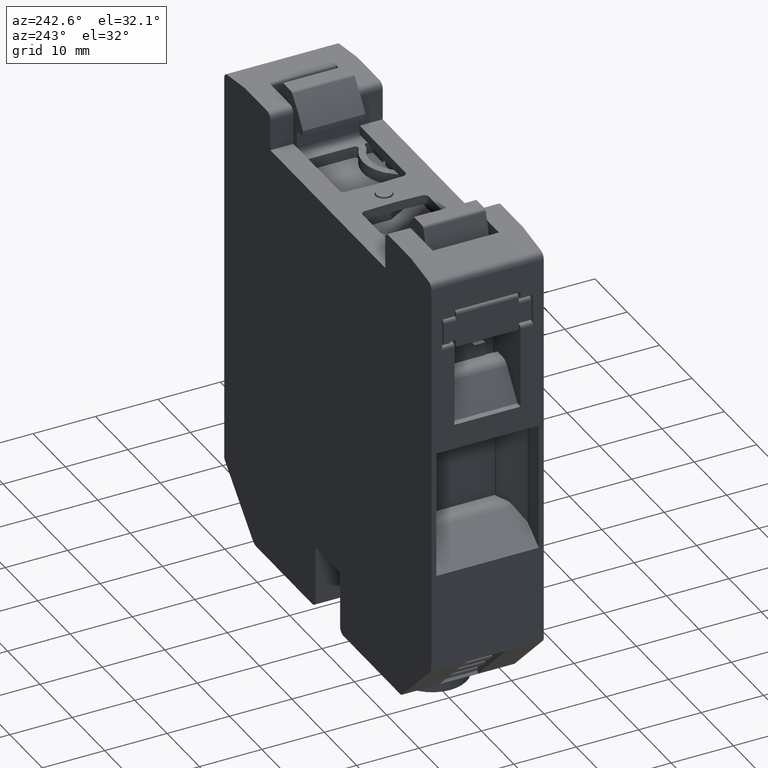
[diagram: clean part render]
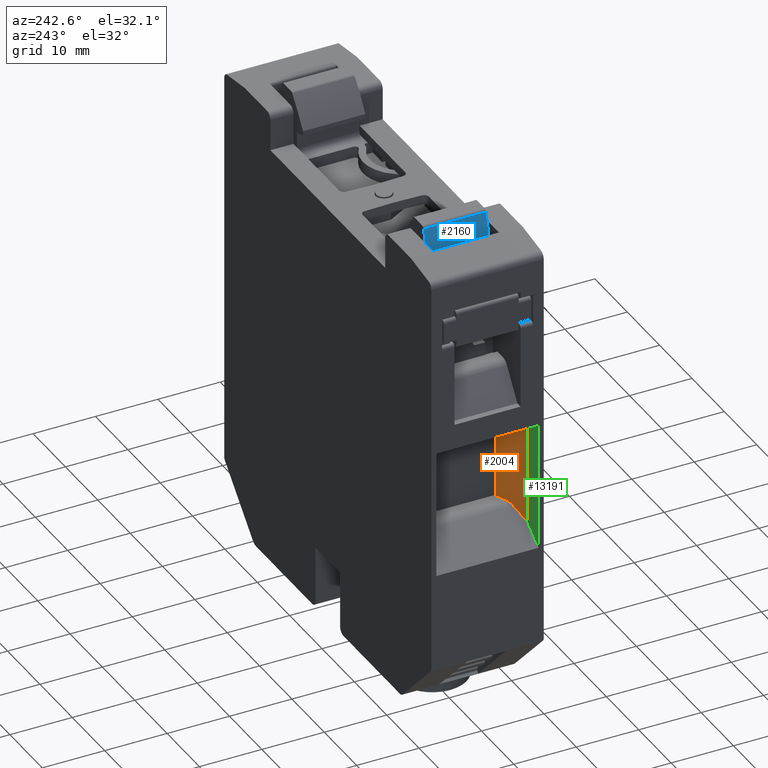
[diagram: same view with three faces highlighted in distinct colors, each labeled with its STEP entity id]
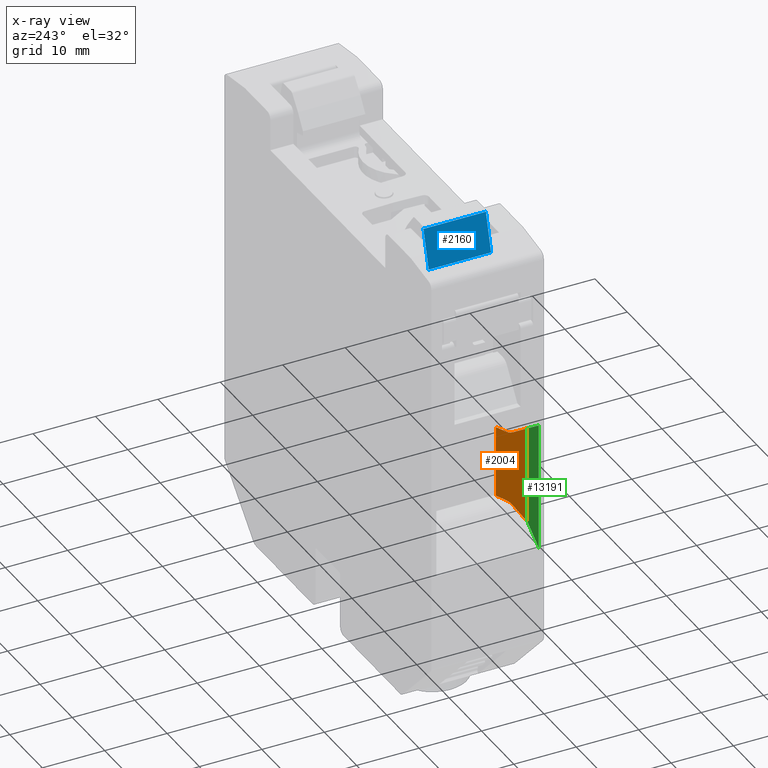
[diagram: x-ray of the same camera — body ghosted, the three highlighted faces saturated]
A machine part, auxiliary view with three faces highlighted in distinct colors.
The next image is the same camera in x-ray (body ghosted, the three faces saturated) — at least one of them is partly hidden behind the body in this view.
Their STEP definitions:

[orange] entity #2004 — the highlighted planar face has unit normal (0.395, -0.9187, 0).
#1174 = AXIS2_PLACEMENT_3D ( 'NONE', #15277, #15259, #15260 ) ;
#1440 = VECTOR ( 'NONE', #18089, 1000.000000000000000 ) ;
#1461 = VECTOR ( 'NONE', #18123, 1000.000000000000000 ) ;
#1485 = VECTOR ( 'NONE', #18130, 1000.000000000000100 ) ;
#2004 = ADVANCED_FACE ( 'NONE', ( #15255 ), #15273, .F. ) ;
#2310 = EDGE_CURVE ( 'NONE', #22037, #21856, #3006, .T. ) ;
#2335 = EDGE_CURVE ( 'NONE', #21884, #22027, #2983, .T. ) ;
#2351 = EDGE_CURVE ( 'NONE', #22022, #22109, #18112, .T. ) ;
#2356 = EDGE_CURVE ( 'NONE', #22022, #22027, #18086, .T. ) ;
#2369 = EDGE_CURVE ( 'NONE', #22037, #22109, #18137, .T. ) ;
#2983 = B_SPLINE_CURVE_WITH_KNOTS ( 'NONE', 3,
 ( #17983, #17973, #17980, #17994, #18010, #17986, #17981, #18013, #17982, #18015, #18019, #17985, #18020, #17987, #17988 ),
 .UNSPECIFIED., .F., .F.,
 ( 4, 2, 2, 1, 1, 1, 2, 2, 4 ),
 ( 0.0000000000000000000, 0.2500000000002010100, 0.3750000000003045900, 0.4375000000003337300, 0.4687500000003668700, 0.4843750000003638800, 0.4921875000003654300, 0.5000000000003669300, 1.000000000000000000 ),
 .UNSPECIFIED. ) ;
#3006 = B_SPLINE_CURVE_WITH_KNOTS ( 'NONE', 3,
 ( #17882, #17898, #17915, #17917, #17910, #17875, #17902, #17903, #17904, #17918, #17919, #17906, #17909, #17911, #17920 ),
 .UNSPECIFIED., .F., .F.,
 ( 4, 2, 2, 1, 1, 1, 2, 2, 4 ),
 ( 0.0000000000000000000, 0.2500000000006173400, 0.3750000000009230900, 0.4375000000010917900, 0.4687500000011633500, 0.4843750000011880500, 0.4921875000011867200, 0.5000000000011853900, 1.000000000000000000 ),
 .UNSPECIFIED. ) ;
#6453 = CARTESIAN_POINT ( 'NONE',  ( 75.08087807398874200, 43.44501882311691800, 29.47008658224126900 ) ) ;
#6454 = CARTESIAN_POINT ( 'NONE',  ( 76.77855709841900000, 44.17496569330342700, 40.97008658224285000 ) ) ;
#6507 = CARTESIAN_POINT ( 'NONE',  ( 75.08087807397771500, 43.44501882311571000, 40.97008658224127200 ) ) ;
#6510 = CARTESIAN_POINT ( 'NONE',  ( 76.77855709842015100, 44.17496569330203500, 29.47008658224188300 ) ) ;
#6635 = CARTESIAN_POINT ( 'NONE',  ( 73.93372520127616100, 42.95178032690867600, 41.33178249366216800 ) ) ;
#6647 = CARTESIAN_POINT ( 'NONE',  ( 73.93372520125491600, 42.95178032689619100, 29.10839067079581400 ) ) ;
#6690 = CARTESIAN_POINT ( 'NONE',  ( 71.42931605679265800, 41.87496569330026100, 43.08538865538747600 ) ) ;
#6711 = CARTESIAN_POINT ( 'NONE',  ( 71.42931605679812900, 41.87496569330114900, 27.35478450908418000 ) ) ;
#10163 = VECTOR ( 'NONE', #10677, 999.9999999999998900 ) ;
#10166 = VECTOR ( 'NONE', #10854, 1000.000000000000000 ) ;
#10210 = VECTOR ( 'NONE', #10997, 999.9999999999998900 ) ;
#10677 = DIRECTION ( 'NONE',  ( 0.9186800097547321900, 0.3950025818612396500, 0.0000000000000000000 ) ) ;
#10679 = LINE ( 'NONE', #10694, #10163 ) ;
#10694 = CARTESIAN_POINT ( 'NONE',  ( 71.42931605680958300, 41.87496569330377100, 29.47008658224126900 ) ) ;
#10821 = LINE ( 'NONE', #10844, #10166 ) ;
#10844 = CARTESIAN_POINT ( 'NONE',  ( 76.77855709842074800, 44.17496569330067800, 23.64733983166548700 ) ) ;
#10854 = DIRECTION ( 'NONE',  ( -1.001214862905556300E-013, 2.328582450490853100E-013, 1.000000000000000000 ) ) ;
#10993 = CARTESIAN_POINT ( 'NONE',  ( 71.42931605680843200, 41.87496569330645000, 40.97008658224285700 ) ) ;
#10997 = DIRECTION ( 'NONE',  ( -0.9186800097547321900, -0.3950025818612396500, -0.0000000000000000000 ) ) ;
#11007 = LINE ( 'NONE', #10993, #10210 ) ;
#13775 = EDGE_CURVE ( 'NONE', #21856, #21898, #10679, .T. ) ;
#13819 = EDGE_CURVE ( 'NONE', #21898, #21854, #10821, .T. ) ;
#13857 = EDGE_CURVE ( 'NONE', #21854, #21884, #11007, .T. ) ;
#15255 = FACE_OUTER_BOUND ( 'NONE', #21277, .T. ) ;
#15259 = DIRECTION ( 'NONE',  ( 0.3950025818612396500, -0.9186800097547321900, 2.534704604177177000E-013 ) ) ;
#15260 = DIRECTION ( 'NONE',  ( 0.9186800097547321900, 0.3950025818612396500, 0.0000000000000000000 ) ) ;
#15273 = PLANE ( 'NONE',  #1174 ) ;
#15277 = CARTESIAN_POINT ( 'NONE',  ( 71.42931605681016500, 41.87496569330241400, 23.64733983166548700 ) ) ;
#17875 = CARTESIAN_POINT ( 'NONE',  ( 74.34952878157213300, 43.13059367798389600, 29.33176450419825800 ) ) ;
#17882 = CARTESIAN_POINT ( 'NONE',  ( 73.93372520125491600, 42.95178032689619100, 29.10839067079581400 ) ) ;
#17898 = CARTESIAN_POINT ( 'NONE',  ( 74.00851097256767700, 42.98393678314007400, 29.16075623161986700 ) ) ;
#17902 = CARTESIAN_POINT ( 'NONE',  ( 74.38746066927990300, 43.14688875396707600, 29.34638427926750400 ) ) ;
#17903 = CARTESIAN_POINT ( 'NONE',  ( 74.43302983677294500, 43.16646996122203500, 29.36234190506262100 ) ) ;
#17904 = CARTESIAN_POINT ( 'NONE',  ( 74.45614019462465200, 43.17640313616816200, 29.37003076474724100 ) ) ;
#17906 = CARTESIAN_POINT ( 'NONE',  ( 74.47743757319472000, 43.18555900302231300, 29.37688077346142600 ) ) ;
#17909 = CARTESIAN_POINT ( 'NONE',  ( 74.60931618925162900, 43.24226211947619400, 29.41846194138333500 ) ) ;
#17910 = CARTESIAN_POINT ( 'NONE',  ( 74.27518777437539700, 43.09865528061705900, 29.30140551448604200 ) ) ;
#17911 = CARTESIAN_POINT ( 'NONE',  ( 74.80978578916153800, 43.32845794096181200, 29.47008658224103100 ) ) ;
#17915 = CARTESIAN_POINT ( 'NONE',  ( 74.09122988612519100, 43.01956926390099800, 29.21105238262981300 ) ) ;
#17917 = CARTESIAN_POINT ( 'NONE',  ( 74.22766008916363500, 43.07823202183851000, 29.27967505309169400 ) ) ;
#17918 = CARTESIAN_POINT ( 'NONE',  ( 74.46611409100744100, 43.18069076214192100, 29.37326221640750400 ) ) ;
#17919 = CARTESIAN_POINT ( 'NONE',  ( 74.47277874859726400, 43.18355596856819300, 29.37540216232598700 ) ) ;
#17920 = CARTESIAN_POINT ( 'NONE',  ( 75.08087807398874200, 43.44501882311691800, 29.47008658224126900 ) ) ;
#17973 = CARTESIAN_POINT ( 'NONE',  ( 74.94535209243798600, 43.38674705051958100, 40.97008658224126500 ) ) ;
#17980 = CARTESIAN_POINT ( 'NONE',  ( 74.82695200863011600, 43.33606220885010900, 40.98366089593800900 ) ) ;
#17981 = CARTESIAN_POINT ( 'NONE',  ( 74.54005691674731800, 43.21252454257735600, 41.04443303566348800 ) ) ;
#17982 = CARTESIAN_POINT ( 'NONE',  ( 74.49390739437988900, 43.19264347192470400, 41.05815066224061400 ) ) ;
#17983 = CARTESIAN_POINT ( 'NONE',  ( 75.08087807397771500, 43.44501882311571000, 40.97008658224127200 ) ) ;
#17985 = CARTESIAN_POINT ( 'NONE',  ( 74.48281383479414300, 43.18787062506044800, 41.06159726224570500 ) ) ;
#17986 = CARTESIAN_POINT ( 'NONE',  ( 74.56928242151437300, 43.22512988523406800, 41.03650933914234900 ) ) ;
#17987 = CARTESIAN_POINT ( 'NONE',  ( 74.08331548654088300, 43.01610129837403200, 41.22703824827701200 ) ) ;
#17988 = CARTESIAN_POINT ( 'NONE',  ( 73.93372520127616100, 42.95178032690867600, 41.33178249366216800 ) ) ;
#17994 = CARTESIAN_POINT ( 'NONE',  ( 74.67664872116894500, 43.27141534273589200, 41.01070147619508100 ) ) ;
#18010 = CARTESIAN_POINT ( 'NONE',  ( 74.63104745574909800, 43.25176312009615700, 41.02086707651646700 ) ) ;
#18013 = CARTESIAN_POINT ( 'NONE',  ( 74.50881828968204000, 43.19906304033306600, 41.05360822256867700 ) ) ;
#18015 = CARTESIAN_POINT ( 'NONE',  ( 74.48766816856586100, 43.18995891033122100, 41.06008483415639200 ) ) ;
#18019 = CARTESIAN_POINT ( 'NONE',  ( 74.48354220209648700, 43.18818402082666800, 41.06137116978975900 ) ) ;
#18020 = CARTESIAN_POINT ( 'NONE',  ( 74.26523544621788600, 43.09431830895741900, 41.13019946464979200 ) ) ;
#18086 = LINE ( 'NONE', #18088, #1440 ) ;
#18088 = CARTESIAN_POINT ( 'NONE',  ( 71.42931605679295600, 41.87496569330038200, 43.08538865538724100 ) ) ;
#18089 = DIRECTION ( 'NONE',  ( 0.7726298903294431800, 0.3322057716098896800, -0.5410012734537604800 ) ) ;
#18112 = LINE ( 'NONE', #18128, #1461 ) ;
#18123 = DIRECTION ( 'NONE',  ( -0.0000000000000000000, 1.046203090193248700E-013, -1.000000000000000000 ) ) ;
#18128 = CARTESIAN_POINT ( 'NONE',  ( 71.42931605679298500, 41.87496569330041000, 42.97008658224032000 ) ) ;
#18130 = DIRECTION ( 'NONE',  ( -0.7726298903284742900, -0.3322057716097836500, -0.5410012734552091000 ) ) ;
#18137 = LINE ( 'NONE', #18180, #1485 ) ;
#18180 = CARTESIAN_POINT ( 'NONE',  ( 73.93372520128683300, 42.95178032690993300, 29.10839067081818900 ) ) ;
#21277 = EDGE_LOOP ( 'NONE', ( #23330, #23221, #23273, #23333, #23235, #23283, #23303, #23322 ) ) ;
#21854 = VERTEX_POINT ( 'NONE', #6454 ) ;
#21856 = VERTEX_POINT ( 'NONE', #6453 ) ;
#21884 = VERTEX_POINT ( 'NONE', #6507 ) ;
#21898 = VERTEX_POINT ( 'NONE', #6510 ) ;
#22022 = VERTEX_POINT ( 'NONE', #6690 ) ;
#22027 = VERTEX_POINT ( 'NONE', #6635 ) ;
#22037 = VERTEX_POINT ( 'NONE', #6647 ) ;
#22109 = VERTEX_POINT ( 'NONE', #6711 ) ;
#23221 = ORIENTED_EDGE ( 'NONE', *, *, #2335, .F. ) ;
#23235 = ORIENTED_EDGE ( 'NONE', *, *, #13775, .F. ) ;
#23273 = ORIENTED_EDGE ( 'NONE', *, *, #13857, .F. ) ;
#23283 = ORIENTED_EDGE ( 'NONE', *, *, #2310, .F. ) ;
#23303 = ORIENTED_EDGE ( 'NONE', *, *, #2369, .T. ) ;
#23322 = ORIENTED_EDGE ( 'NONE', *, *, #2351, .F. ) ;
#23330 = ORIENTED_EDGE ( 'NONE', *, *, #2356, .T. ) ;
#23333 = ORIENTED_EDGE ( 'NONE', *, *, #13819, .F. ) ;

[blue] entity #2160 — the highlighted planar face has unit normal (0.9659, -0, -0.2588).
#1296 = AXIS2_PLACEMENT_3D ( 'NONE', #17187, #17188, #17195 ) ;
#2160 = ADVANCED_FACE ( 'NONE', ( #17189 ), #17213, .F. ) ;
#7259 = CARTESIAN_POINT ( 'NONE',  ( 78.15686783925995900, 55.07460764096190800, 76.62627961334753500 ) ) ;
#7291 = CARTESIAN_POINT ( 'NONE',  ( 76.56336301647013400, 55.07460764096193600, 70.67923262315912300 ) ) ;
#7322 = CARTESIAN_POINT ( 'NONE',  ( 76.56336301647007800, 45.07460764096192900, 70.67923262315910900 ) ) ;
#7362 = CARTESIAN_POINT ( 'NONE',  ( 78.15686783925990300, 45.07460764096190800, 76.62627961334752100 ) ) ;
#7731 = LINE ( 'NONE', #7770, #16098 ) ;
#7732 = CARTESIAN_POINT ( 'NONE',  ( 78.15686783926001600, 57.07460764096189400, 76.62627961334753500 ) ) ;
#7762 = DIRECTION ( 'NONE',  ( -5.538735199300800900E-015, -1.000000000000000000, 1.484098119083771700E-015 ) ) ;
#7770 = CARTESIAN_POINT ( 'NONE',  ( 76.56336301647020500, 57.07460764096189400, 70.67923262315908100 ) ) ;
#7771 = DIRECTION ( 'NONE',  ( 5.538735199300800900E-015, 1.000000000000000000, -1.484098119083771700E-015 ) ) ;
#7776 = LINE ( 'NONE', #7732, #15553 ) ;
#9675 = LINE ( 'NONE', #9693, #10054 ) ;
#9682 = DIRECTION ( 'NONE',  ( -0.2588188002758266500, 4.508091019909966600E-015, -0.9659258918901501000 ) ) ;
#9693 = CARTESIAN_POINT ( 'NONE',  ( 78.15686783925993100, 45.07460764096190100, 76.62627961334749200 ) ) ;
#9820 = DIRECTION ( 'NONE',  ( 0.2588188002758260400, -5.635113774887444800E-015, 0.9659258918901501000 ) ) ;
#9826 = CARTESIAN_POINT ( 'NONE',  ( 76.56336301647014900, 55.07460764096192200, 70.67923262315912300 ) ) ;
#9852 = LINE ( 'NONE', #9826, #10073 ) ;
#10054 = VECTOR ( 'NONE', #9682, 999.9999999999998900 ) ;
#10073 = VECTOR ( 'NONE', #9820, 1000.000000000000100 ) ;
#13462 = EDGE_CURVE ( 'NONE', #22656, #22710, #7776, .T. ) ;
#13464 = EDGE_CURVE ( 'NONE', #22703, #22673, #7731, .T. ) ;
#13665 = EDGE_CURVE ( 'NONE', #22710, #22703, #9675, .T. ) ;
#13696 = EDGE_CURVE ( 'NONE', #22673, #22656, #9852, .T. ) ;
#15553 = VECTOR ( 'NONE', #7762, 1000.000000000000000 ) ;
#16098 = VECTOR ( 'NONE', #7771, 1000.000000000000000 ) ;
#16338 = ORIENTED_EDGE ( 'NONE', *, *, #13462, .F. ) ;
#16353 = ORIENTED_EDGE ( 'NONE', *, *, #13696, .F. ) ;
#16370 = ORIENTED_EDGE ( 'NONE', *, *, #13464, .F. ) ;
#16383 = ORIENTED_EDGE ( 'NONE', *, *, #13665, .F. ) ;
#17187 = CARTESIAN_POINT ( 'NONE',  ( 78.15686783926001600, 57.07460764096189400, 76.62627961334753500 ) ) ;
#17188 = DIRECTION ( 'NONE',  ( 0.9659258918901517700, -5.734120232000866100E-015, -0.2588188002758201600 ) ) ;
#17189 = FACE_OUTER_BOUND ( 'NONE', #21011, .T. ) ;
#17195 = DIRECTION ( 'NONE',  ( -0.2588188002758201600, 0.0000000000000000000, -0.9659258918901517700 ) ) ;
#17213 = PLANE ( 'NONE',  #1296 ) ;
#21011 = EDGE_LOOP ( 'NONE', ( #16370, #16383, #16338, #16353 ) ) ;
#22656 = VERTEX_POINT ( 'NONE', #7259 ) ;
#22673 = VERTEX_POINT ( 'NONE', #7291 ) ;
#22703 = VERTEX_POINT ( 'NONE', #7322 ) ;
#22710 = VERTEX_POINT ( 'NONE', #7362 ) ;

[green] entity #13191 — the highlighted planar face has unit normal (-0, 1, 0).
#1461 = VECTOR ( 'NONE', #18123, 1000.000000000000000 ) ;
#1617 = VECTOR ( 'NONE', #19122, 1000.000000000000000 ) ;
#1636 = VECTOR ( 'NONE', #19152, 1000.000000000000000 ) ;
#1640 = VECTOR ( 'NONE', #19145, 999.9999999999998900 ) ;
#2351 = EDGE_CURVE ( 'NONE', #22022, #22109, #18112, .T. ) ;
#2578 = EDGE_CURVE ( 'NONE', #22261, #22022, #19091, .T. ) ;
#2583 = EDGE_CURVE ( 'NONE', #22109, #22144, #19181, .T. ) ;
#2586 = EDGE_CURVE ( 'NONE', #22261, #22144, #19185, .T. ) ;
#5995 = DIRECTION ( 'NONE',  ( 0.0000000000000000000, -1.046203090193248700E-013, 1.000000000000000000 ) ) ;
#6005 = CARTESIAN_POINT ( 'NONE',  ( 74.20915467616620700, 41.87496569330053800, 42.97008658224032000 ) ) ;
#6015 = PLANE ( 'NONE',  #15897 ) ;
#6035 = DIRECTION ( 'NONE',  ( -4.473128614634619800E-014, 1.000000000000000000, 1.046203090193248700E-013 ) ) ;
#6059 = FACE_OUTER_BOUND ( 'NONE', #21413, .T. ) ;
#6690 = CARTESIAN_POINT ( 'NONE',  ( 71.42931605679265800, 41.87496569330026100, 43.08538865538747600 ) ) ;
#6711 = CARTESIAN_POINT ( 'NONE',  ( 71.42931605679812900, 41.87496569330114900, 27.35478450908418000 ) ) ;
#6790 = CARTESIAN_POINT ( 'NONE',  ( 67.99836346486260700, 41.87496569330158300, 24.95240564096445400 ) ) ;
#6899 = CARTESIAN_POINT ( 'NONE',  ( 67.99836346484787000, 41.87496569329999100, 45.48776752350276100 ) ) ;
#13191 = ADVANCED_FACE ( 'NONE', ( #6059 ), #6015, .T. ) ;
#15897 = AXIS2_PLACEMENT_3D ( 'NONE', #6005, #6035, #5995 ) ;
#18112 = LINE ( 'NONE', #18128, #1461 ) ;
#18123 = DIRECTION ( 'NONE',  ( -0.0000000000000000000, 1.046203090193248700E-013, -1.000000000000000000 ) ) ;
#18128 = CARTESIAN_POINT ( 'NONE',  ( 71.42931605679298500, 41.87496569330041000, 42.97008658224032000 ) ) ;
#19086 = CARTESIAN_POINT ( 'NONE',  ( 67.99836346484363500, 41.87496569329999100, 45.48776752350573800 ) ) ;
#19091 = LINE ( 'NONE', #19086, #1617 ) ;
#19122 = DIRECTION ( 'NONE',  ( 0.8191520442895096100, 9.608775420278286600E-014, -0.5735764363503066400 ) ) ;
#19145 = DIRECTION ( 'NONE',  ( -0.8191520442884811000, 0.0000000000000000000, -0.5735764363517755800 ) ) ;
#19146 = CARTESIAN_POINT ( 'NONE',  ( 67.99836346481723100, 41.87496569329998400, 73.99564332460802500 ) ) ;
#19152 = DIRECTION ( 'NONE',  ( 9.253514454551253100E-013, -0.0000000000000000000, -1.000000000000000000 ) ) ;
#19181 = LINE ( 'NONE', #19184, #1640 ) ;
#19184 = CARTESIAN_POINT ( 'NONE',  ( 71.42931605680649900, 41.87496569330203000, 27.35478450908825100 ) ) ;
#19185 = LINE ( 'NONE', #19146, #1636 ) ;
#20186 = ORIENTED_EDGE ( 'NONE', *, *, #2578, .T. ) ;
#20195 = ORIENTED_EDGE ( 'NONE', *, *, #2583, .T. ) ;
#20801 = ORIENTED_EDGE ( 'NONE', *, *, #2351, .T. ) ;
#20825 = ORIENTED_EDGE ( 'NONE', *, *, #2586, .F. ) ;
#21413 = EDGE_LOOP ( 'NONE', ( #20195, #20825, #20186, #20801 ) ) ;
#22022 = VERTEX_POINT ( 'NONE', #6690 ) ;
#22109 = VERTEX_POINT ( 'NONE', #6711 ) ;
#22144 = VERTEX_POINT ( 'NONE', #6790 ) ;
#22261 = VERTEX_POINT ( 'NONE', #6899 ) ;